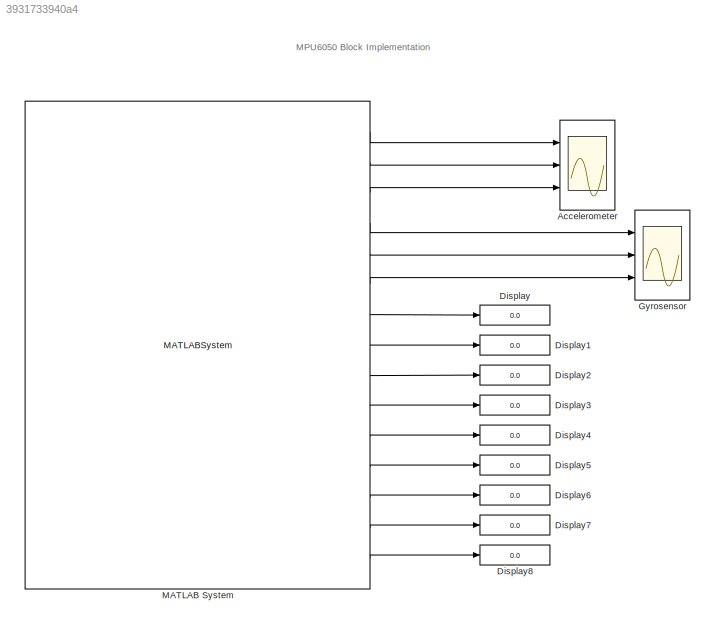
MODEL slx_3931733940a4
KIND model
CONFIG AbsTol = auto
CONFIG EnableMultiTasking = on
CONFIG FixedStep = 0.001
CONFIG MaxStep = auto
CONFIG MinStep = auto
CONFIG RelTol = 1e-3
CONFIG SampleTimeConstraint = Unconstrained
CONFIG Solver = FixedStepDiscrete
CONFIG SolverName = FixedStepDiscrete
CONFIG StartTime = 0.0
CONFIG StopTime = 5
BLOCK [Scope] Accelerometer
  Floating = off
  NumInputPorts = 3
  Ports = [3]
  ScopeSpecificationString = Simulink.scopes.TimeScopeBlockCfg('CurrentConfiguration', extmgr.ConfigurationSet(extmgr.Configuration('Core','General UI',true),extmgr.Configuration('Core','Source UI',true),extmgr.Configuration('Sources','WiredSimulink',true,'DataLoggingVariableName','ScopeData1'),extmgr.Configuration('Visuals','Time Domain',true,'SerializedDisplays',{struct('MinYLimReal','-2.49999','MaxYLimReal','2.49993','YLab...<+1437ch>
BLOCK [Display] Display
  Decimation = 1
  Ports = [1]
BLOCK [Display] Display1
  Decimation = 1
  Ports = [1]
BLOCK [Display] Display2
  Decimation = 1
  Ports = [1]
BLOCK [Display] Display3
  Decimation = 1
  Ports = [1]
BLOCK [Display] Display4
  Decimation = 1
  Ports = [1]
BLOCK [Display] Display5
  Decimation = 1
  Ports = [1]
BLOCK [Display] Display6
  Decimation = 1
  Ports = [1]
BLOCK [Display] Display7
  Decimation = 1
  Ports = [1]
BLOCK [Display] Display8
  Decimation = 1
  Ports = [1]
BLOCK [Scope] Gyrosensor
  Floating = off
  NumInputPorts = 3
  Ports = [3]
  ScopeSpecificationString = Simulink.scopes.TimeScopeBlockCfg('CurrentConfiguration', extmgr.ConfigurationSet(extmgr.Configuration('Core','General UI',true),extmgr.Configuration('Core','Source UI',true),extmgr.Configuration('Sources','WiredSimulink',true,'DataLoggingVariableName','ScopeData2'),extmgr.Configuration('Visuals','Time Domain',true),extmgr.Configuration('Tools','Plot Navigation',true),extmgr.Configuration('Tools',...<+58ch>
BLOCK [MATLABSystem] MATLAB System
  MaskDisplay = image('MPU6050.png');\nport_label('output',1,'acc_x');\nport_label('output',2,'acc_y');\nport_label('output',3,'acc_z');\nport_label('output',4,'gyro_x');\nport_label('output',5,'gyro_y');\nport_label('output',6,'gyro_z');\nport_label('output',7,'acc_angl_x');\nport_label('output',8,'acc_angl_y');\nport_label('output',9,'gyro_angl_x');\nport_label('output',10,'gyro_angl_y');\nport_label('output',11,'gyro_ang...<+140ch>
  MaskType = MPU6050
  Ports = [0, 15]
  System = MPU6050
ANNOTATION (root): MPU6050 Block Implementation
LINE MATLAB System:1 -> Accelerometer:1
LINE MATLAB System:10 -> Display3:1
LINE MATLAB System:11 -> Display4:1
LINE MATLAB System:12 -> Display5:1
LINE MATLAB System:13 -> Display6:1
LINE MATLAB System:14 -> Display7:1
LINE MATLAB System:15 -> Display8:1
LINE MATLAB System:2 -> Accelerometer:2
LINE MATLAB System:3 -> Accelerometer:3
LINE MATLAB System:4 -> Gyrosensor:1
LINE MATLAB System:5 -> Gyrosensor:2
LINE MATLAB System:6 -> Gyrosensor:3
LINE MATLAB System:7 -> Display:1
LINE MATLAB System:8 -> Display1:1
LINE MATLAB System:9 -> Display2:1
